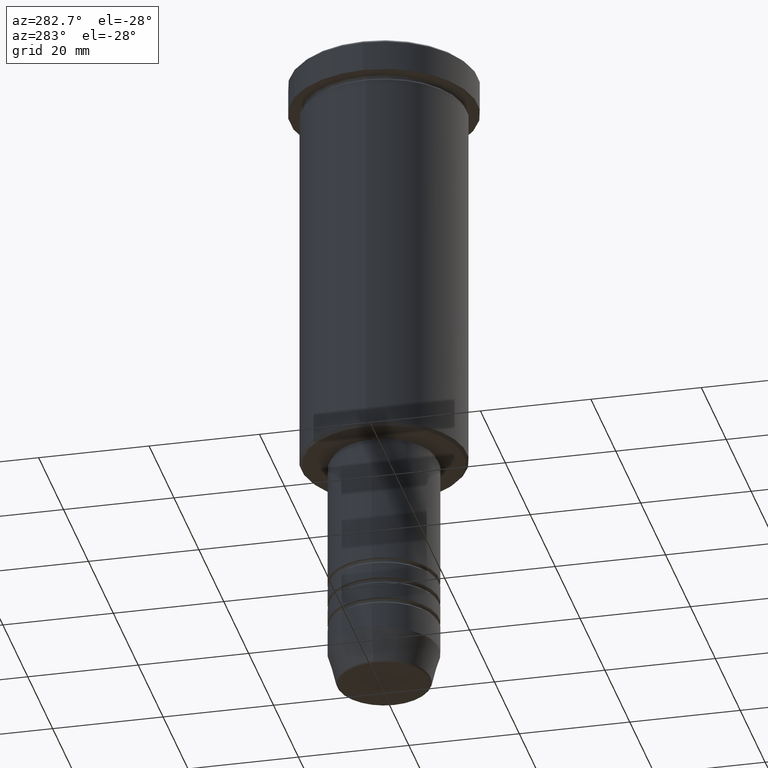
[diagram: clean part render]
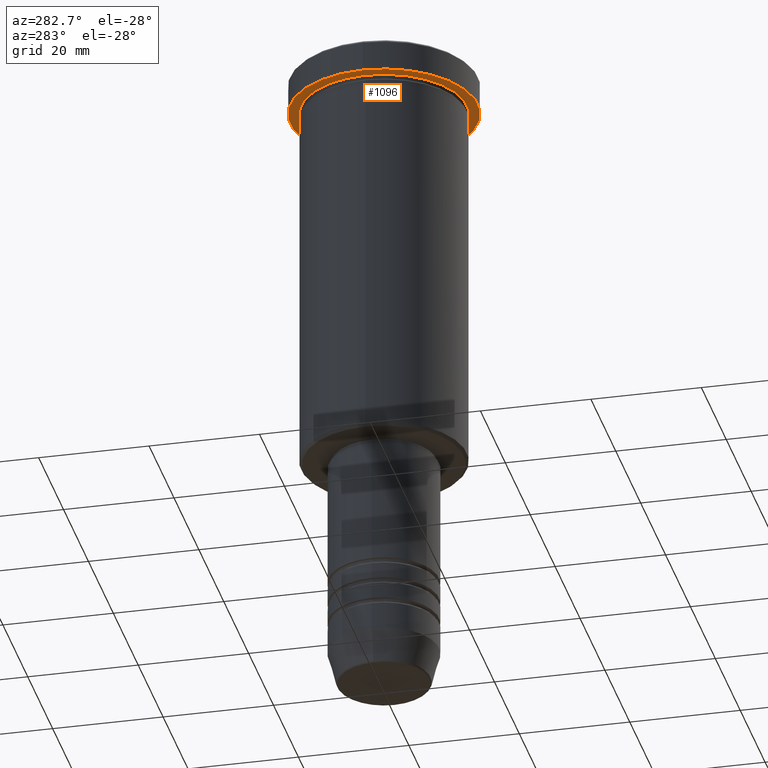
[diagram: same view with one face highlighted and labeled with its STEP entity id]
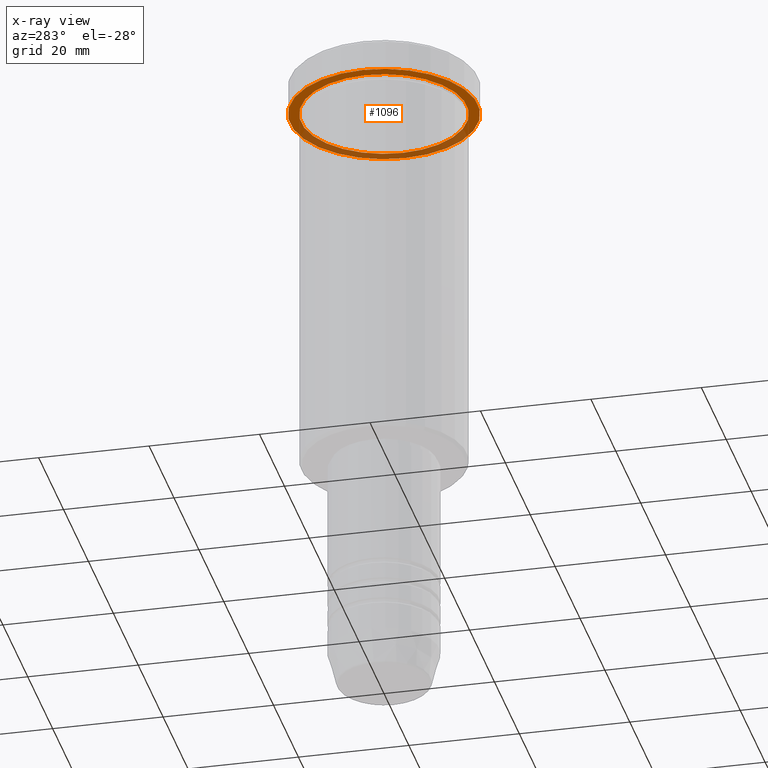
[diagram: x-ray of the same camera — body ghosted, the highlighted face saturated]
A machine part, auxiliary view. The second image highlights one B-rep face of the part: STEP entity #1096.
The next image is the same camera in x-ray: the body ghosted, the highlighted face saturated — about 36% of this face is hidden behind the body in this view.
In plain terms, the highlighted planar face has unit normal (0, 0, -1).
Its self-contained STEP definition (entity closure, byte-faithful):
#58 = DIRECTION ( 'NONE',  ( -0.000000000000000000, -0.000000000000000000, 1.000000000000000000 ) ) ;
#101 = DIRECTION ( 'NONE',  ( -1.000000000000000000, 0.000000000000000000, 0.000000000000000000 ) ) ;
#123 = DIRECTION ( 'NONE',  ( -1.000000000000000000, 0.000000000000000000, 0.000000000000000000 ) ) ;
#148 = DIRECTION ( 'NONE',  ( 1.000000000000000000, 0.000000000000000000, 0.000000000000000000 ) ) ;
#153 = CIRCLE ( 'NONE', #1117, 15.00000000000000000 ) ;
#167 = FACE_OUTER_BOUND ( 'NONE', #758, .T. ) ;
#168 = VERTEX_POINT ( 'NONE', #902 ) ;
#188 = DIRECTION ( 'NONE',  ( 1.000000000000000000, 0.000000000000000000, 0.000000000000000000 ) ) ;
#234 = DIRECTION ( 'NONE',  ( -0.000000000000000000, -0.000000000000000000, 1.000000000000000000 ) ) ;
#237 = ORIENTED_EDGE ( 'NONE', *, *, #626, .T. ) ;
#241 = CARTESIAN_POINT ( 'NONE',  ( 17.00000000000000000, 0.000000000000000000, -5.999999999999994671 ) ) ;
#315 = EDGE_LOOP ( 'NONE', ( #463, #237 ) ) ;
#320 = VERTEX_POINT ( 'NONE', #423 ) ;
#321 = CARTESIAN_POINT ( 'NONE',  ( -15.00000000000000000, 0.000000000000000000, -5.999999999999994671 ) ) ;
#323 = EDGE_CURVE ( 'NONE', #526, #168, #886, .T. ) ;
#359 = CARTESIAN_POINT ( 'NONE',  ( 0.000000000000000000, 0.000000000000000000, -5.999999999999994671 ) ) ;
#373 = AXIS2_PLACEMENT_3D ( 'NONE', #359, #548, #188 ) ;
#381 = VERTEX_POINT ( 'NONE', #241 ) ;
#423 = CARTESIAN_POINT ( 'NONE',  ( -17.00000000000000000, 2.081899558550500280E-15, -5.999999999999994671 ) ) ;
#430 = PLANE ( 'NONE',  #929 ) ;
#463 = ORIENTED_EDGE ( 'NONE', *, *, #323, .T. ) ;
#524 = DIRECTION ( 'NONE',  ( 0.000000000000000000, 0.000000000000000000, -1.000000000000000000 ) ) ;
#526 = VERTEX_POINT ( 'NONE', #321 ) ;
#535 = ORIENTED_EDGE ( 'NONE', *, *, #1042, .F. ) ;
#548 = DIRECTION ( 'NONE',  ( -0.000000000000000000, -0.000000000000000000, 1.000000000000000000 ) ) ;
#565 = CARTESIAN_POINT ( 'NONE',  ( 0.000000000000000000, 0.000000000000000000, -5.999999999999994671 ) ) ;
#624 = AXIS2_PLACEMENT_3D ( 'NONE', #982, #58, #148 ) ;
#626 = EDGE_CURVE ( 'NONE', #168, #526, #153, .T. ) ;
#655 = DIRECTION ( 'NONE',  ( -0.000000000000000000, -0.000000000000000000, 1.000000000000000000 ) ) ;
#659 = AXIS2_PLACEMENT_3D ( 'NONE', #693, #234, #123 ) ;
#693 = CARTESIAN_POINT ( 'NONE',  ( 0.000000000000000000, 0.000000000000000000, -5.999999999999994671 ) ) ;
#707 = DIRECTION ( 'NONE',  ( -1.000000000000000000, 0.000000000000000000, -0.000000000000000000 ) ) ;
#758 = EDGE_LOOP ( 'NONE', ( #1170, #535 ) ) ;
#825 = FACE_BOUND ( 'NONE', #315, .T. ) ;
#838 = CIRCLE ( 'NONE', #624, 17.00000000000000000 ) ;
#886 = CIRCLE ( 'NONE', #659, 15.00000000000000000 ) ;
#902 = CARTESIAN_POINT ( 'NONE',  ( 15.00000000000000000, 1.836970198721029589E-15, -5.999999999999994671 ) ) ;
#929 = AXIS2_PLACEMENT_3D ( 'NONE', #1074, #524, #707 ) ;
#982 = CARTESIAN_POINT ( 'NONE',  ( 0.000000000000000000, 0.000000000000000000, -5.999999999999994671 ) ) ;
#1042 = EDGE_CURVE ( 'NONE', #320, #381, #1108, .T. ) ;
#1074 = CARTESIAN_POINT ( 'NONE',  ( 0.000000000000000000, 17.00000000000000000, -5.999999999999994671 ) ) ;
#1096 = ADVANCED_FACE ( 'NONE', ( #825, #167 ), #430, .T. ) ;
#1108 = CIRCLE ( 'NONE', #373, 17.00000000000000000 ) ;
#1117 = AXIS2_PLACEMENT_3D ( 'NONE', #565, #655, #101 ) ;
#1147 = EDGE_CURVE ( 'NONE', #381, #320, #838, .T. ) ;
#1170 = ORIENTED_EDGE ( 'NONE', *, *, #1147, .F. ) ;